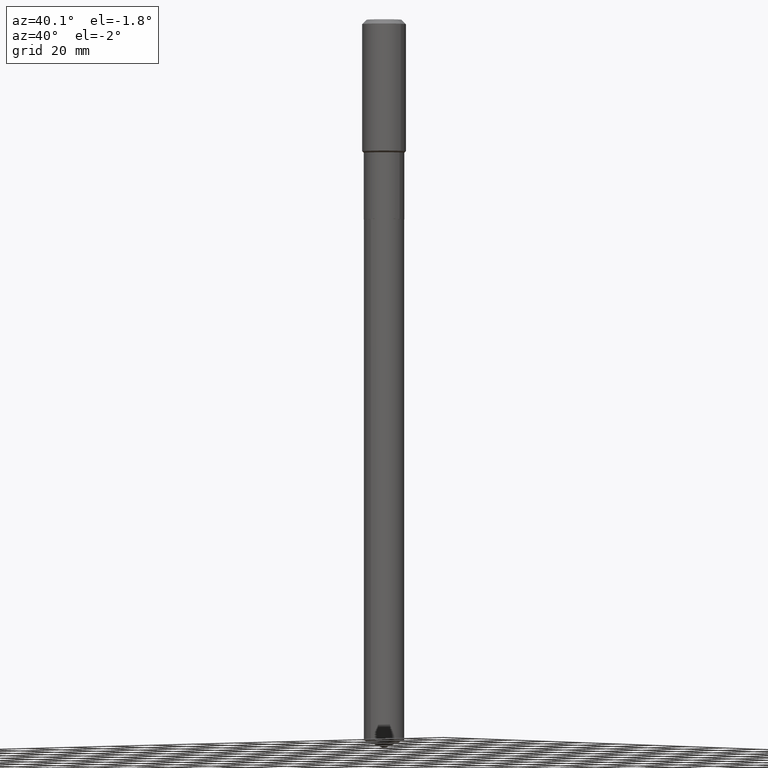
[diagram: clean part render]
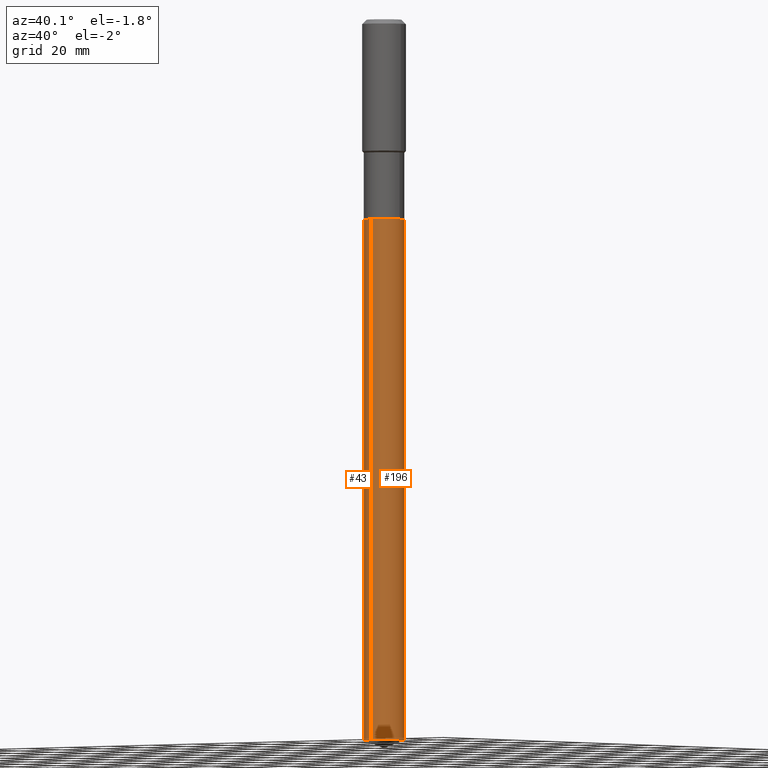
[diagram: same view with one multi-face feature highlighted, each face labeled with its STEP entity id]
A machine part, auxiliary view. The highlighted faces form ONE feature: a constant-radius fillet chain: 2 tangent blend faces with common blend radius 7.4003 mm. The faces share edges in the B-rep.
Their STEP definitions:
[1] entity #196 (Cylinder):
#13 = DIRECTION ( 'NONE',  ( -6.982962677686265922E-15, -1.000000000000000000, 3.750606478344620614E-15 ) ) ;
#28 = LINE ( 'NONE', #192, #332 ) ;
#56 = CARTESIAN_POINT ( 'NONE',  ( 7.048330193186798900E-29, -1.006314751481371118E-14, -2.882199999999999207 ) ) ;
#59 = CIRCLE ( 'NONE', #365, 0.2913499999999999979 ) ;
#60 = DIRECTION ( 'NONE',  ( -2.445491696897657882E-29, 3.491448558039956977E-15, 1.000000000000000000 ) ) ;
#82 = DIRECTION ( 'NONE',  ( -2.445491696897657882E-29, 3.491448558039956977E-15, 1.000000000000000000 ) ) ;
#86 = EDGE_LOOP ( 'NONE', ( #176, #333, #337, #119 ) ) ;
#91 = AXIS2_PLACEMENT_3D ( 'NONE', #153, #207, #231 ) ;
#92 = EDGE_CURVE ( 'NONE', #308, #346, #28, .T. ) ;
#119 = ORIENTED_EDGE ( 'NONE', *, *, #440, .F. ) ;
#142 = CARTESIAN_POINT ( 'NONE',  ( 2.070166260637307467E-15, 0.2913499999999899503, -2.882200000000000095 ) ) ;
#152 = VECTOR ( 'NONE', #60, 39.37007874015748143 ) ;
#153 = CARTESIAN_POINT ( 'NONE',  ( 2.542628388944317848E-28, -3.630150277642420534E-14, -10.39723418292958534 ) ) ;
#160 = AXIS2_PLACEMENT_3D ( 'NONE', #462, #432, #13 ) ;
#176 = ORIENTED_EDGE ( 'NONE', *, *, #424, .T. ) ;
#192 = CARTESIAN_POINT ( 'NONE',  ( 2.070166260637122085E-15, 0.2913499999999898948, -2.882200000000000095 ) ) ;
#195 = CARTESIAN_POINT ( 'NONE',  ( -2.034486176143639215E-15, -0.2913500000000363022, -10.39723418292958534 ) ) ;
#196 = ADVANCED_FACE ( 'NONE', ( #353 ), #269, .T. ) ;
#207 = DIRECTION ( 'NONE',  ( -2.445491696897657882E-29, 3.491448558039956582E-15, 1.000000000000000000 ) ) ;
#214 = LINE ( 'NONE', #356, #152 ) ;
#231 = DIRECTION ( 'NONE',  ( -6.982962677686265922E-15, -1.000000000000000000, 0.000000000000000000 ) ) ;
#243 = CARTESIAN_POINT ( 'NONE',  ( -2.034486176143823414E-15, -0.2913500000000100454, -2.882199999999997875 ) ) ;
#256 = CARTESIAN_POINT ( 'NONE',  ( 2.070166260637305890E-15, 0.2913499999999637491, -10.39723418292958534 ) ) ;
#269 = CYLINDRICAL_SURFACE ( 'NONE', #160, 0.2913499999999999979 ) ;
#275 = CIRCLE ( 'NONE', #91, 0.2913499999999999979 ) ;
#308 = VERTEX_POINT ( 'NONE', #256 ) ;
#332 = VECTOR ( 'NONE', #82, 39.37007874015748143 ) ;
#333 = ORIENTED_EDGE ( 'NONE', *, *, #92, .T. ) ;
#337 = ORIENTED_EDGE ( 'NONE', *, *, #457, .F. ) ;
#346 = VERTEX_POINT ( 'NONE', #142 ) ;
#353 = FACE_OUTER_BOUND ( 'NONE', #86, .T. ) ;
#356 = CARTESIAN_POINT ( 'NONE',  ( -2.034486176143823414E-15, -0.2913500000000100454, -2.882199999999997875 ) ) ;
#365 = AXIS2_PLACEMENT_3D ( 'NONE', #56, #396, #383 ) ;
#383 = DIRECTION ( 'NONE',  ( -6.982962677686265922E-15, -1.000000000000000000, 3.750606478344620614E-15 ) ) ;
#396 = DIRECTION ( 'NONE',  ( -2.445491696897657882E-29, 3.491448558039956582E-15, 1.000000000000000000 ) ) ;
#424 = EDGE_CURVE ( 'NONE', #488, #308, #275, .T. ) ;
#432 = DIRECTION ( 'NONE',  ( -2.445491696897657882E-29, 3.491448558039956582E-15, 1.000000000000000000 ) ) ;
#440 = EDGE_CURVE ( 'NONE', #488, #456, #214, .T. ) ;
#456 = VERTEX_POINT ( 'NONE', #243 ) ;
#457 = EDGE_CURVE ( 'NONE', #456, #346, #59, .T. ) ;
#462 = CARTESIAN_POINT ( 'NONE',  ( 7.048330193186798900E-29, -1.006314751481371118E-14, -2.882199999999999207 ) ) ;
#488 = VERTEX_POINT ( 'NONE', #195 ) ;
[2] entity #43 (Cylinder):
#4 = ORIENTED_EDGE ( 'NONE', *, *, #92, .F. ) ;
#12 = ORIENTED_EDGE ( 'NONE', *, *, #276, .F. ) ;
#21 = CIRCLE ( 'NONE', #384, 0.2913499999999999979 ) ;
#28 = LINE ( 'NONE', #192, #332 ) ;
#43 = ADVANCED_FACE ( 'NONE', ( #73 ), #261, .T. ) ;
#53 = EDGE_CURVE ( 'NONE', #308, #488, #270, .T. ) ;
#60 = DIRECTION ( 'NONE',  ( -2.445491696897657882E-29, 3.491448558039956977E-15, 1.000000000000000000 ) ) ;
#73 = FACE_OUTER_BOUND ( 'NONE', #227, .T. ) ;
#82 = DIRECTION ( 'NONE',  ( -2.445491696897657882E-29, 3.491448558039956977E-15, 1.000000000000000000 ) ) ;
#87 = ORIENTED_EDGE ( 'NONE', *, *, #440, .T. ) ;
#92 = EDGE_CURVE ( 'NONE', #308, #346, #28, .T. ) ;
#142 = CARTESIAN_POINT ( 'NONE',  ( 2.070166260637307467E-15, 0.2913499999999899503, -2.882200000000000095 ) ) ;
#149 = CARTESIAN_POINT ( 'NONE',  ( 7.048330193186798900E-29, -1.006314751481371118E-14, -2.882199999999999207 ) ) ;
#152 = VECTOR ( 'NONE', #60, 39.37007874015748143 ) ;
#157 = DIRECTION ( 'NONE',  ( -6.982962677686265922E-15, -1.000000000000000000, 3.750606478344620614E-15 ) ) ;
#192 = CARTESIAN_POINT ( 'NONE',  ( 2.070166260637122085E-15, 0.2913499999999898948, -2.882200000000000095 ) ) ;
#195 = CARTESIAN_POINT ( 'NONE',  ( -2.034486176143639215E-15, -0.2913500000000363022, -10.39723418292958534 ) ) ;
#204 = AXIS2_PLACEMENT_3D ( 'NONE', #149, #344, #157 ) ;
#214 = LINE ( 'NONE', #356, #152 ) ;
#227 = EDGE_LOOP ( 'NONE', ( #4, #425, #87, #12 ) ) ;
#243 = CARTESIAN_POINT ( 'NONE',  ( -2.034486176143823414E-15, -0.2913500000000100454, -2.882199999999997875 ) ) ;
#256 = CARTESIAN_POINT ( 'NONE',  ( 2.070166260637305890E-15, 0.2913499999999637491, -10.39723418292958534 ) ) ;
#258 = DIRECTION ( 'NONE',  ( -2.445491696897657882E-29, 3.491448558039956582E-15, 1.000000000000000000 ) ) ;
#261 = CYLINDRICAL_SURFACE ( 'NONE', #204, 0.2913499999999999979 ) ;
#270 = CIRCLE ( 'NONE', #429, 0.2913499999999999979 ) ;
#276 = EDGE_CURVE ( 'NONE', #346, #456, #21, .T. ) ;
#290 = CARTESIAN_POINT ( 'NONE',  ( 2.542628388944317848E-28, -3.630150277642420534E-14, -10.39723418292958534 ) ) ;
#308 = VERTEX_POINT ( 'NONE', #256 ) ;
#332 = VECTOR ( 'NONE', #82, 39.37007874015748143 ) ;
#338 = DIRECTION ( 'NONE',  ( -6.982962677686265922E-15, -1.000000000000000000, 0.000000000000000000 ) ) ;
#344 = DIRECTION ( 'NONE',  ( -2.445491696897657882E-29, 3.491448558039956582E-15, 1.000000000000000000 ) ) ;
#346 = VERTEX_POINT ( 'NONE', #142 ) ;
#356 = CARTESIAN_POINT ( 'NONE',  ( -2.034486176143823414E-15, -0.2913500000000100454, -2.882199999999997875 ) ) ;
#384 = AXIS2_PLACEMENT_3D ( 'NONE', #439, #258, #471 ) ;
#425 = ORIENTED_EDGE ( 'NONE', *, *, #53, .T. ) ;
#429 = AXIS2_PLACEMENT_3D ( 'NONE', #290, #447, #338 ) ;
#439 = CARTESIAN_POINT ( 'NONE',  ( 7.048330193186798900E-29, -1.006314751481371118E-14, -2.882199999999999207 ) ) ;
#440 = EDGE_CURVE ( 'NONE', #488, #456, #214, .T. ) ;
#447 = DIRECTION ( 'NONE',  ( -2.445491696897657882E-29, 3.491448558039956582E-15, 1.000000000000000000 ) ) ;
#456 = VERTEX_POINT ( 'NONE', #243 ) ;
#471 = DIRECTION ( 'NONE',  ( -6.982962677686265922E-15, -1.000000000000000000, 3.750606478344620614E-15 ) ) ;
#488 = VERTEX_POINT ( 'NONE', #195 ) ;